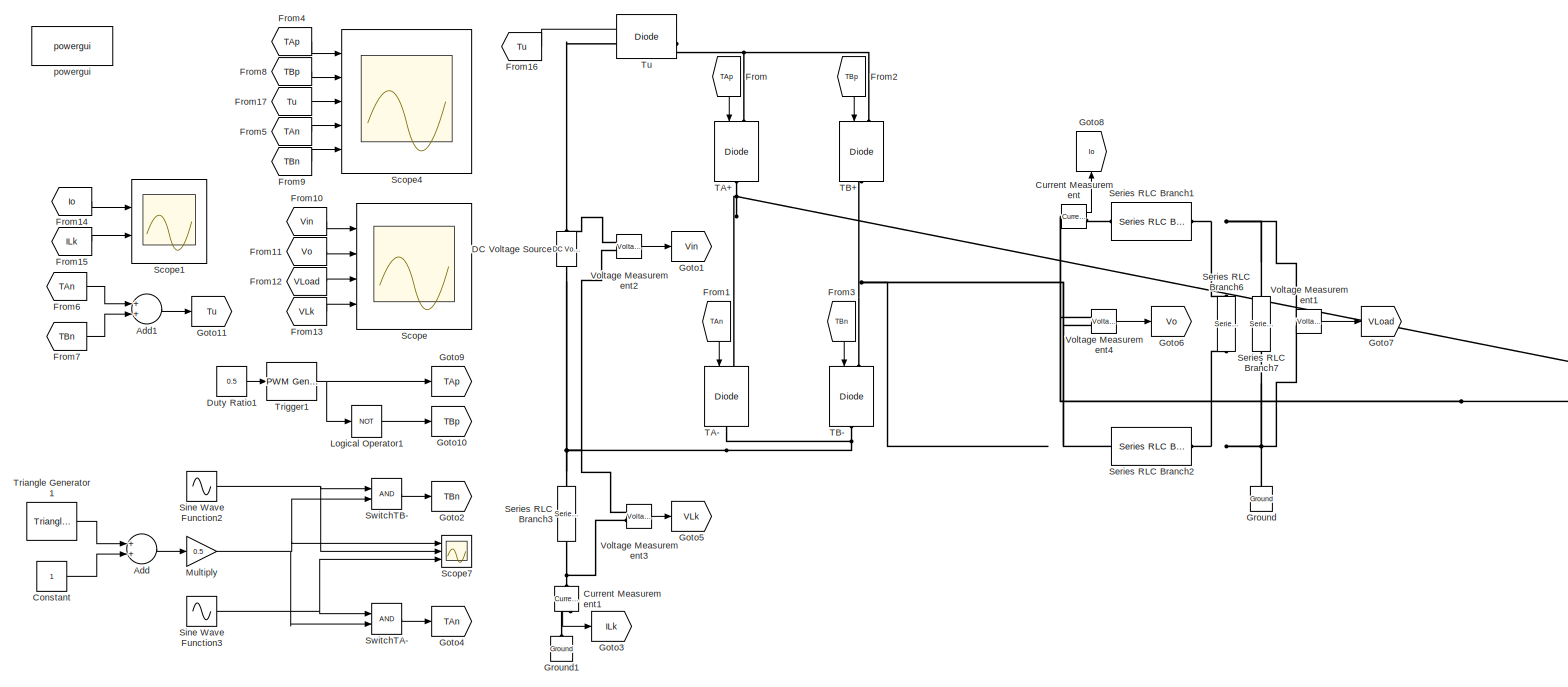
[diagram: root canvas - part 1/1, most of the canvas]
MODEL slx_24ac4985bd10
KIND model
CONFIG AbsTol = auto
CONFIG EnableMultiTasking = off
CONFIG FixedStep = auto
CONFIG MaxStep = auto
CONFIG MinStep = auto
CONFIG RelTol = 1e-3
CONFIG SampleTimeConstraint = Unconstrained
CONFIG Solver = VariableStepAuto
CONFIG SolverName = VariableStepAuto
CONFIG StartTime = 0.0
CONFIG StopTime = 0.2
BLOCK [Sum] Add
  InputSameDT = off
  OutDataTypeStr = Inherit: Inherit via internal rule
  Ports = [2, 1]
  SaturateOnIntegerOverflow = off
BLOCK [Sum] Add1
  InputSameDT = off
  OutDataTypeStr = Inherit: Inherit via internal rule
  Ports = [2, 1]
  SaturateOnIntegerOverflow = off
BLOCK [Constant] Constant
BLOCK [Reference] Current Measurement  REF=powerlib/Measurements/Current Measurement
  Ports = [0, 1, 0, 0, 0, 1, 1]
  SourceBlock = powerlib/Measurements/Current Measurement
  SourceProductBaseCode = PS
  SourceProductName = Simscape Electrical
  SourceType = Current Measurement
  UserDataPersistent = on
BLOCK [Reference] Current Measurement1  REF=powerlib/Measurements/Current Measurement
  Ports = [0, 1, 0, 0, 0, 1, 1]
  SourceBlock = powerlib/Measurements/Current Measurement
  SourceProductBaseCode = PS
  SourceProductName = Simscape Electrical
  SourceType = Current Measurement
  UserDataPersistent = on
BLOCK [Reference] DC Voltage Source  REF=powerlib/Electrical
Sources/DC Voltage Source
  Ports = [0, 0, 0, 0, 0, 1, 1]
  SourceBlock = powerlib/Electrical\nSources/DC Voltage Source
  SourceProductBaseCode = PS
  SourceProductName = Simscape Electrical
  SourceType = DC Voltage Source
BLOCK [Constant] Duty Ratio1
  Value = 0.5
BLOCK [From] From
  GotoTag = TAp
BLOCK [From] From1
  GotoTag = TAn
BLOCK [From] From10
  GotoTag = Vin
BLOCK [From] From11
  GotoTag = Vo
BLOCK [From] From12
  GotoTag = VLoad
BLOCK [From] From13
  GotoTag = VLk
BLOCK [From] From14
  GotoTag = Io
BLOCK [From] From15
  GotoTag = ILk
BLOCK [From] From16
  GotoTag = Tu
BLOCK [From] From17
  GotoTag = Tu
BLOCK [From] From2
  GotoTag = TBp
BLOCK [From] From3
  GotoTag = TBn
BLOCK [From] From4
  GotoTag = TAp
BLOCK [From] From5
  GotoTag = TAn
BLOCK [From] From6
  GotoTag = TAn
BLOCK [From] From7
  GotoTag = TBn
BLOCK [From] From8
  GotoTag = TBp
BLOCK [From] From9
  GotoTag = TBn
BLOCK [Goto] Goto1
  GotoTag = Vin
BLOCK [Goto] Goto10
  GotoTag = TBp
BLOCK [Goto] Goto11
  GotoTag = Tu
BLOCK [Goto] Goto2
  GotoTag = TBn
BLOCK [Goto] Goto3
  GotoTag = ILk
BLOCK [Goto] Goto4
  GotoTag = TAn
BLOCK [Goto] Goto5
  GotoTag = VLk
BLOCK [Goto] Goto6
  GotoTag = Vo
BLOCK [Goto] Goto7
  GotoTag = VLoad
BLOCK [Goto] Goto8
  GotoTag = Io
BLOCK [Goto] Goto9
  GotoTag = TAp
BLOCK [Reference] Ground  REF=powerlib/Elements/Ground
  Ports = [0, 0, 0, 0, 0, 1]
  SourceBlock = powerlib/Elements/Ground
  SourceProductBaseCode = PS
  SourceProductName = Simscape Electrical
  SourceType = Ground
BLOCK [Reference] Ground1  REF=powerlib/Elements/Ground
  Ports = [0, 0, 0, 0, 0, 1]
  SourceBlock = powerlib/Elements/Ground
  SourceProductBaseCode = PS
  SourceProductName = Simscape Electrical
  SourceType = Ground
BLOCK [Logic] Logical Operator1
  AllPortsSameDT = off
  Operator = NOT
  OutDataTypeStr = boolean
  Ports = [1, 1]
BLOCK [Gain] Multiply
  Gain = 0.5
  OutDataTypeStr = Inherit: Inherit via internal rule
  ParamDataTypeStr = Inherit: Inherit via internal rule
  SaturateOnIntegerOverflow = off
BLOCK [Scope] Scope
  Floating = off
  NumInputPorts = 4
  Ports = [4]
  ScopeSpecificationString = Simulink.scopes.TimeScopeBlockCfg('CurrentConfiguration', extmgr.ConfigurationSet(extmgr.Configuration('Core','General UI',true),extmgr.Configuration('Core','Source UI',true),extmgr.Configuration('Sources','WiredSimulink',true,'DataLoggingVariableName','ScopeData2'),extmgr.Configuration('Visuals','Time Domain',true,'SerializedDisplays',{struct('MinYLimReal','500.00000','MaxYLimReal','700.00000','Y...<+3832ch>
BLOCK [Scope] Scope1
  Floating = off
  NumInputPorts = 2
  Ports = [2]
  ScopeSpecificationString = Simulink.scopes.TimeScopeBlockCfg('CurrentConfiguration', extmgr.ConfigurationSet(extmgr.Configuration('Core','General UI',true),extmgr.Configuration('Core','Source UI',true),extmgr.Configuration('Sources','WiredSimulink',true,'DataLoggingVariableName','ScopeData1'),extmgr.Configuration('Visuals','Time Domain',true,'SerializedDisplays',{struct('MinYLimReal','-62.25117','MaxYLimReal','62.24317','YL...<+2142ch>
BLOCK [Scope] Scope4
  Floating = off
  NumInputPorts = 5
  Ports = [5]
  ScopeSpecificationString = Simulink.scopes.TimeScopeBlockCfg('CurrentConfiguration', extmgr.ConfigurationSet(extmgr.Configuration('Core','General UI',true),extmgr.Configuration('Core','Source UI',true),extmgr.Configuration('Sources','WiredSimulink',true,'DataLoggingVariableName','ScopeData3'),extmgr.Configuration('Visuals','Time Domain',true,'SerializedDisplays',{struct('MinYLimReal','-0.125','MaxYLimReal','1.125','YLabelRe...<+3908ch>
BLOCK [Scope] Scope7
  Floating = off
  NumInputPorts = 3
  Ports = [3]
  ScopeSpecificationString = Simulink.scopes.TimeScopeBlockCfg('CurrentConfiguration', extmgr.ConfigurationSet(extmgr.Configuration('Core','General UI',true),extmgr.Configuration('Core','Source UI',true),extmgr.Configuration('Sources','WiredSimulink',true),extmgr.Configuration('Visuals','Time Domain',true,'SerializedDisplays',{struct('MinYLimReal','-1.025','MaxYLimReal','1.225','YLabelReal','Voltage [V]','MinYLimMag','0.00000...<+1791ch>
BLOCK [Reference] Series RLC Branch1  REF=powerlib/Elements/Series RLC Branch
  Ports = [0, 0, 0, 0, 0, 1, 1]
  SourceBlock = powerlib/Elements/Series RLC Branch
  SourceProductBaseCode = PS
  SourceProductName = Simscape Electrical
  SourceType = Series RLC Branch
BLOCK [Reference] Series RLC Branch2  REF=powerlib/Elements/Series RLC Branch
  Ports = [0, 0, 0, 0, 0, 1, 1]
  SourceBlock = powerlib/Elements/Series RLC Branch
  SourceProductBaseCode = PS
  SourceProductName = Simscape Electrical
  SourceType = Series RLC Branch
BLOCK [Reference] Series RLC Branch3  REF=powerlib/Elements/Series RLC Branch
  Ports = [0, 0, 0, 0, 0, 1, 1]
  SourceBlock = powerlib/Elements/Series RLC Branch
  SourceProductBaseCode = PS
  SourceProductName = Simscape Electrical
  SourceType = Series RLC Branch
BLOCK [Reference] Series RLC Branch6  REF=powerlib/Elements/Series RLC Branch
  Ports = [0, 0, 0, 0, 0, 1, 1]
  SourceBlock = powerlib/Elements/Series RLC Branch
  SourceProductBaseCode = PS
  SourceProductName = Simscape Electrical
  SourceType = Series RLC Branch
BLOCK [Reference] Series RLC Branch7  REF=powerlib/Elements/Series RLC Branch
  Ports = [0, 0, 0, 0, 0, 1, 1]
  SourceBlock = powerlib/Elements/Series RLC Branch
  SourceProductBaseCode = PS
  SourceProductName = Simscape Electrical
  SourceType = Series RLC Branch
BLOCK [Sin] Sine Wave Function2
  Amplitude = 0.8
  Frequency = 2*pi*50.0
  Ports = [0, 1]
  SampleTime = 0
BLOCK [Sin] Sine Wave Function3
  Amplitude = -0.8
  Frequency = 2*pi*50.0
  Ports = [0, 1]
  SampleTime = 0
BLOCK [RelationalOperator] SwitchTA-
  InputSameDT = off
  OutDataTypeStr = boolean
  Ports = [2, 1]
  RndMeth = Simplest
BLOCK [RelationalOperator] SwitchTB-
  InputSameDT = off
  OutDataTypeStr = boolean
  Ports = [2, 1]
  RndMeth = Simplest
BLOCK [Reference] TA+  REF=powerlib/Power
Electronics/IGBT//Diode
  Ports = [1, 0, 0, 0, 0, 1, 1]
  SourceBlock = powerlib/Power\nElectronics/IGBT//Diode
  SourceProductBaseCode = PS
  SourceProductName = Simscape Electrical
  SourceType = IGBT/Diode
BLOCK [Reference] TA-  REF=powerlib/Power
Electronics/IGBT//Diode
  Ports = [1, 0, 0, 0, 0, 1, 1]
  SourceBlock = powerlib/Power\nElectronics/IGBT//Diode
  SourceProductBaseCode = PS
  SourceProductName = Simscape Electrical
  SourceType = IGBT/Diode
BLOCK [Reference] TB+  REF=powerlib/Power
Electronics/IGBT//Diode
  Ports = [1, 0, 0, 0, 0, 1, 1]
  SourceBlock = powerlib/Power\nElectronics/IGBT//Diode
  SourceProductBaseCode = PS
  SourceProductName = Simscape Electrical
  SourceType = IGBT/Diode
BLOCK [Reference] TB-  REF=powerlib/Power
Electronics/IGBT//Diode
  Ports = [1, 0, 0, 0, 0, 1, 1]
  SourceBlock = powerlib/Power\nElectronics/IGBT//Diode
  SourceProductBaseCode = PS
  SourceProductName = Simscape Electrical
  SourceType = IGBT/Diode
BLOCK [Reference] Triangle Generator1  REF=powerlib_meascontrol/Pulse & Signal
Generators/Triangle
Generator
  Ports = [0, 1]
  SourceBlock = powerlib_meascontrol/Pulse & Signal\nGenerators/Triangle\nGenerator
  SourceProductBaseCode = PS
  SourceProductName = Simscape Electrical
  SourceType = Triangle Generator
BLOCK [Reference] Trigger1  REF=powerlib_meascontrol/Pulse & Signal
Generators/PWM Generator
(DC-DC)
  Ports = [1, 1]
  SourceBlock = powerlib_meascontrol/Pulse & Signal\nGenerators/PWM Generator\n(DC-DC)
  SourceProductBaseCode = PS
  SourceProductName = Simscape Electrical
  SourceType = PWM Generator (DC-DC)
BLOCK [Reference] Tu  REF=powerlib/Power
Electronics/IGBT//Diode
  Ports = [1, 0, 0, 0, 0, 1, 1]
  SourceBlock = powerlib/Power\nElectronics/IGBT//Diode
  SourceProductBaseCode = PS
  SourceProductName = Simscape Electrical
  SourceType = IGBT/Diode
BLOCK [Reference] Voltage Measurement1  REF=powerlib/Measurements/Voltage Measurement
  Ports = [0, 1, 0, 0, 0, 2]
  SourceBlock = powerlib/Measurements/Voltage Measurement
  SourceProductBaseCode = PS
  SourceProductName = Simscape Electrical
  SourceType = Voltage Measurement
  UserDataPersistent = on
BLOCK [Reference] Voltage Measurement2  REF=powerlib/Measurements/Voltage Measurement
  Ports = [0, 1, 0, 0, 0, 2]
  SourceBlock = powerlib/Measurements/Voltage Measurement
  SourceProductBaseCode = PS
  SourceProductName = Simscape Electrical
  SourceType = Voltage Measurement
  UserDataPersistent = on
BLOCK [Reference] Voltage Measurement3  REF=powerlib/Measurements/Voltage Measurement
  Ports = [0, 1, 0, 0, 0, 2]
  SourceBlock = powerlib/Measurements/Voltage Measurement
  SourceProductBaseCode = PS
  SourceProductName = Simscape Electrical
  SourceType = Voltage Measurement
  UserDataPersistent = on
BLOCK [Reference] Voltage Measurement4  REF=powerlib/Measurements/Voltage Measurement
  Ports = [0, 1, 0, 0, 0, 2]
  SourceBlock = powerlib/Measurements/Voltage Measurement
  SourceProductBaseCode = PS
  SourceProductName = Simscape Electrical
  SourceType = Voltage Measurement
  UserDataPersistent = on
BLOCK [Reference] powergui  REF=powerlib/powergui
  Ports = []
  Priority = 1
  SourceBlock = powerlib/powergui
  SourceProductBaseCode = PS
  SourceProductName = Simscape Electrical
  SourceType = PSB option menu block
LINE Add1:1 -> Goto11:1
LINE Add:1 -> Multiply:1
LINE Constant:1 -> Add:2
LINE Current Measurement1:1 -> Goto3:1
LINE Current Measurement:1 -> Goto8:1
LINE Duty Ratio1:1 -> Trigger1:1
LINE From10:1 -> Scope:1
LINE From11:1 -> Scope:2
LINE From12:1 -> Scope:3
LINE From13:1 -> Scope:4
LINE From14:1 -> Scope1:1
LINE From15:1 -> Scope1:2
LINE From16:1 -> Tu:1
LINE From17:1 -> Scope4:3
LINE From1:1 -> TA-:1
LINE From2:1 -> TB+:1
LINE From3:1 -> TB-:1
LINE From4:1 -> Scope4:1
LINE From5:1 -> Scope4:4
LINE From6:1 -> Add1:1
LINE From7:1 -> Add1:2
LINE From8:1 -> Scope4:2
LINE From9:1 -> Scope4:5
LINE From:1 -> TA+:1
LINE Logical Operator1:1 -> Goto10:1
NET Multiply:1 -> Scope7:1, SwitchTA-:2, SwitchTB-:2
NET Sine Wave Function2:1 -> Scope7:2, SwitchTB-:1
NET Sine Wave Function3:1 -> Scope7:3, SwitchTA-:1
LINE SwitchTA-:1 -> Goto4:1
LINE SwitchTB-:1 -> Goto2:1
LINE Triangle Generator1:1 -> Add:1
NET Trigger1:1 -> Goto9:1, Logical Operator1:1
LINE Voltage Measurement1:1 -> Goto7:1
LINE Voltage Measurement2:1 -> Goto1:1
LINE Voltage Measurement3:1 -> Goto5:1
LINE Voltage Measurement4:1 -> Goto6:1
PNET net1: Current Measurement1:LConn1 -- Series RLC Branch3:RConn1 -- Voltage Measurement3:LConn2
PLINE Current Measurement1:RConn1 -- Ground1:LConn1
PNET net2: Current Measurement:LConn1 -- TA+:RConn1 -- TA-:LConn1 -- Voltage Measurement4:LConn1
PLINE Current Measurement:RConn1 -- Series RLC Branch1:LConn1
PNET net3: DC Voltage Source:LConn1 -- Series RLC Branch3:LConn1 -- TA-:RConn1 -- TB-:RConn1 -- Voltage Measurement2:LConn2 -- Voltage Measurement3:LConn1
PNET net4: DC Voltage Source:RConn1 -- Tu:LConn1 -- Voltage Measurement2:LConn1
PNET net5: Ground:LConn1 -- Series RLC Branch2:LConn1 -- Series RLC Branch6:RConn1 -- Series RLC Branch7:RConn1 -- Voltage Measurement1:LConn2
PNET net6: Series RLC Branch1:RConn1 -- Series RLC Branch6:LConn1 -- Series RLC Branch7:LConn1 -- Voltage Measurement1:LConn1
PNET net7: Series RLC Branch2:RConn1 -- TB+:RConn1 -- TB-:LConn1 -- Voltage Measurement4:LConn2
PNET net8: TA+:LConn1 -- TB+:LConn1 -- Tu:RConn1
note: NET lines group one-source signal fan-out (src -> all destinations, sorted); 1:1 wires keep LINE; PNET lines group multi-terminal physical nets as a canonical sorted terminal list (undirected conserving connections); 2-terminal nets keep the pairwise PLINE form
